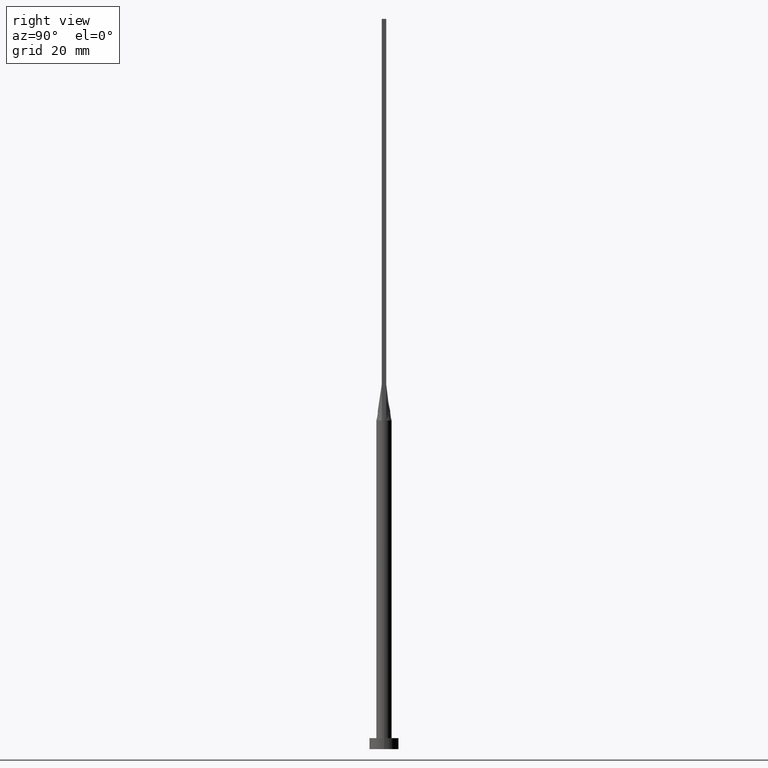
[diagram: clean part render]
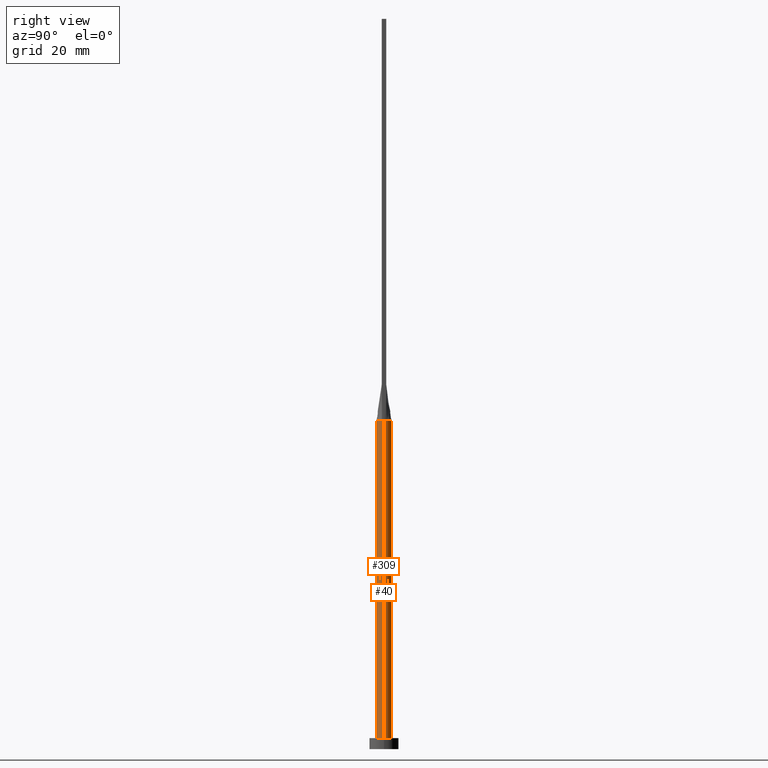
[diagram: same view with one multi-face feature highlighted, each face labeled with its STEP entity id]
A machine part, right view. The highlighted faces form ONE feature: a constant-radius fillet chain: 2 tangent blend faces with common blend radius 2.1 mm. The faces share edges in the B-rep.
Their STEP definitions:
[1] entity #40 (Cylinder):
#1 = EDGE_CURVE ( 'NONE', #502, #539, #475, .T. ) ;
#8 = EDGE_CURVE ( 'NONE', #372, #539, #489, .T. ) ;
#17 = CARTESIAN_POINT ( 'NONE',  ( -2.002622288503867587, 0.6324075186587619912, 90.00000000000000000 ) ) ;
#32 = CARTESIAN_POINT ( 'NONE',  ( 0.5124799074986362557, 2.051574327850739454, 90.00000000000004263 ) ) ;
#40 = ADVANCED_FACE ( 'NONE', ( #114 ), #161, .T. ) ;
#50 = VECTOR ( 'NONE', #262, 1000.000000000000000 ) ;
#52 = CARTESIAN_POINT ( 'NONE',  ( -2.100000000000000089, -1.284268198382905442E-16, 90.00000000000000000 ) ) ;
#65 = VERTEX_POINT ( 'NONE', #478 ) ;
#70 = CARTESIAN_POINT ( 'NONE',  ( -2.100000000000000089, 0.000000000000000000, 3.000000000000000000 ) ) ;
#71 = EDGE_CURVE ( 'NONE', #194, #502, #305, .T. ) ;
#86 = DIRECTION ( 'NONE',  ( -0.000000000000000000, -0.000000000000000000, -1.000000000000000000 ) ) ;
#93 = CARTESIAN_POINT ( 'NONE',  ( -1.667357759214464830, 1.291791096182927534, 90.00000000000001421 ) ) ;
#97 = CARTESIAN_POINT ( 'NONE',  ( 0.000000000000000000, 0.000000000000000000, 3.000000000000000000 ) ) ;
#103 = CARTESIAN_POINT ( 'NONE',  ( 2.002598039528881380, 0.6323997261616642884, 90.00000000000000000 ) ) ;
#113 = AXIS2_PLACEMENT_3D ( 'NONE', #293, #347, #117 ) ;
#114 = FACE_OUTER_BOUND ( 'NONE', #126, .T. ) ;
#117 = DIRECTION ( 'NONE',  ( -1.000000000000000000, 0.000000000000000000, 0.000000000000000000 ) ) ;
#126 = EDGE_LOOP ( 'NONE', ( #265, #157, #189, #451, #580, #556 ) ) ;
#148 = CARTESIAN_POINT ( 'NONE',  ( -1.878511276496549032, 0.9591670956957809580, 90.00000000000004263 ) ) ;
#157 = ORIENTED_EDGE ( 'NONE', *, *, #71, .T. ) ;
#160 = CARTESIAN_POINT ( 'NONE',  ( -1.529462611013499451, 1.456669187245239527, 90.00000000000002842 ) ) ;
#161 = CYLINDRICAL_SURFACE ( 'NONE', #113, 2.100000000000000089 ) ;
#165 = DIRECTION ( 'NONE',  ( 1.000000000000000000, 0.000000000000000000, 0.000000000000000000 ) ) ;
#184 = CIRCLE ( 'NONE', #326, 2.100000000000000089 ) ;
#186 = B_SPLINE_CURVE_WITH_KNOTS ( 'NONE', 3,
 ( #103, #378, #331, #552, #467, #240, #422, #32, #290, #248, #203, #246, #211, #160, #93, #148, #561, #471 ),
 .UNSPECIFIED., .F., .F.,
 ( 4, 2, 2, 2, 2, 2, 2, 2, 4 ),
 ( 0.000000000000000000, 0.1249999999999999167, 0.2499999999999998890, 0.3749999999999998335, 0.4999999999999998890, 0.6249999999999998890, 0.7499999999999998890, 0.8750000000000000000, 1.000000000000000000 ),
 .UNSPECIFIED. ) ;
#189 = ORIENTED_EDGE ( 'NONE', *, *, #1, .T. ) ;
#194 = VERTEX_POINT ( 'NONE', #532 ) ;
#203 = CARTESIAN_POINT ( 'NONE',  ( -0.5124799074986362557, 2.051574327850739454, 90.00000000000002842 ) ) ;
#211 = CARTESIAN_POINT ( 'NONE',  ( -1.184262492297963876, 1.748903470433446294, 90.00000000000002842 ) ) ;
#217 = EDGE_CURVE ( 'NONE', #65, #455, #186, .T. ) ;
#240 = CARTESIAN_POINT ( 'NONE',  ( 1.184262492297964098, 1.748903470433445628, 90.00000000000000000 ) ) ;
#246 = CARTESIAN_POINT ( 'NONE',  ( -0.9765948449220482885, 1.875594675604967509, 90.00000000000004263 ) ) ;
#248 = CARTESIAN_POINT ( 'NONE',  ( -0.2565105576742073845, 2.100000000000000533, 90.00000000000001421 ) ) ;
#258 = CARTESIAN_POINT ( 'NONE',  ( -2.100000000000000089, 0.000000000000000000, 90.00000000000000000 ) ) ;
#262 = DIRECTION ( 'NONE',  ( -0.000000000000000000, -0.000000000000000000, -1.000000000000000000 ) ) ;
#265 = ORIENTED_EDGE ( 'NONE', *, *, #547, .F. ) ;
#269 = CARTESIAN_POINT ( 'NONE',  ( 2.100000000000000089, 2.571758278209441957E-16, 90.00000000000000000 ) ) ;
#287 = AXIS2_PLACEMENT_3D ( 'NONE', #514, #564, #294 ) ;
#288 = DIRECTION ( 'NONE',  ( 1.000000000000000000, 0.000000000000000000, 0.000000000000000000 ) ) ;
#290 = CARTESIAN_POINT ( 'NONE',  ( 0.2565105576742081062, 2.100000000000000533, 90.00000000000000000 ) ) ;
#293 = CARTESIAN_POINT ( 'NONE',  ( 0.000000000000000000, 0.000000000000000000, 90.00000000000000000 ) ) ;
#294 = DIRECTION ( 'NONE',  ( 1.000000000000000000, 0.000000000000000000, 0.000000000000000000 ) ) ;
#305 = LINE ( 'NONE', #269, #50 ) ;
#321 = VECTOR ( 'NONE', #86, 1000.000000000000000 ) ;
#326 = AXIS2_PLACEMENT_3D ( 'NONE', #548, #508, #288 ) ;
#331 = CARTESIAN_POINT ( 'NONE',  ( 1.878511276496548366, 0.9591670956957804028, 90.00000000000000000 ) ) ;
#347 = DIRECTION ( 'NONE',  ( -0.000000000000000000, -0.000000000000000000, -1.000000000000000000 ) ) ;
#372 = VERTEX_POINT ( 'NONE', #52 ) ;
#378 = CARTESIAN_POINT ( 'NONE',  ( 1.952271707612931895, 0.7915068550356627597, 89.99999999999998579 ) ) ;
#414 = CIRCLE ( 'NONE', #287, 2.100000000000000089 ) ;
#422 = CARTESIAN_POINT ( 'NONE',  ( 0.9765948449220478444, 1.875594675604967065, 90.00000000000001421 ) ) ;
#424 = CARTESIAN_POINT ( 'NONE',  ( 2.100000000000000089, 2.571758278209441957E-16, 3.000000000000000000 ) ) ;
#451 = ORIENTED_EDGE ( 'NONE', *, *, #8, .F. ) ;
#455 = VERTEX_POINT ( 'NONE', #17 ) ;
#467 = CARTESIAN_POINT ( 'NONE',  ( 1.529462611013499451, 1.456669187245239527, 90.00000000000002842 ) ) ;
#471 = CARTESIAN_POINT ( 'NONE',  ( -2.002622288503867587, 0.6324075186587619912, 90.00000000000000000 ) ) ;
#475 = CIRCLE ( 'NONE', #554, 2.100000000000000089 ) ;
#478 = CARTESIAN_POINT ( 'NONE',  ( 2.002598039528881380, 0.6323997261616642884, 90.00000000000000000 ) ) ;
#489 = LINE ( 'NONE', #258, #321 ) ;
#500 = EDGE_CURVE ( 'NONE', #455, #372, #184, .T. ) ;
#502 = VERTEX_POINT ( 'NONE', #424 ) ;
#508 = DIRECTION ( 'NONE',  ( 0.000000000000000000, 0.000000000000000000, 1.000000000000000000 ) ) ;
#514 = CARTESIAN_POINT ( 'NONE',  ( 0.000000000000000000, 0.000000000000000000, 90.00000000000000000 ) ) ;
#532 = CARTESIAN_POINT ( 'NONE',  ( 2.100000000000000089, 3.372022381799045987E-17, 90.00000000000000000 ) ) ;
#533 = DIRECTION ( 'NONE',  ( 0.000000000000000000, 0.000000000000000000, 1.000000000000000000 ) ) ;
#539 = VERTEX_POINT ( 'NONE', #70 ) ;
#547 = EDGE_CURVE ( 'NONE', #194, #65, #414, .T. ) ;
#548 = CARTESIAN_POINT ( 'NONE',  ( 0.000000000000000000, 0.000000000000000000, 90.00000000000000000 ) ) ;
#552 = CARTESIAN_POINT ( 'NONE',  ( 1.667357759214464608, 1.291791096182927090, 90.00000000000000000 ) ) ;
#554 = AXIS2_PLACEMENT_3D ( 'NONE', #97, #533, #165 ) ;
#556 = ORIENTED_EDGE ( 'NONE', *, *, #217, .F. ) ;
#561 = CARTESIAN_POINT ( 'NONE',  ( -1.952271707612931895, 0.7915068550356629817, 90.00000000000001421 ) ) ;
#564 = DIRECTION ( 'NONE',  ( 0.000000000000000000, 0.000000000000000000, 1.000000000000000000 ) ) ;
#580 = ORIENTED_EDGE ( 'NONE', *, *, #500, .F. ) ;
[2] entity #309 (Cylinder):
#8 = EDGE_CURVE ( 'NONE', #372, #539, #489, .T. ) ;
#10 = EDGE_CURVE ( 'NONE', #37, #357, #68, .T. ) ;
#14 = CARTESIAN_POINT ( 'NONE',  ( 0.000000000000000000, 0.000000000000000000, 3.000000000000000000 ) ) ;
#33 = CARTESIAN_POINT ( 'NONE',  ( -2.002601997802567535, -0.6324010168594718095, 90.00000000000000000 ) ) ;
#35 = AXIS2_PLACEMENT_3D ( 'NONE', #14, #193, #154 ) ;
#37 = VERTEX_POINT ( 'NONE', #33 ) ;
#43 = DIRECTION ( 'NONE',  ( 0.000000000000000000, 0.000000000000000000, 1.000000000000000000 ) ) ;
#50 = VECTOR ( 'NONE', #262, 1000.000000000000000 ) ;
#52 = CARTESIAN_POINT ( 'NONE',  ( -2.100000000000000089, -1.284268198382905442E-16, 90.00000000000000000 ) ) ;
#54 = FACE_OUTER_BOUND ( 'NONE', #220, .T. ) ;
#68 = CIRCLE ( 'NONE', #412, 2.100000000000000089 ) ;
#70 = CARTESIAN_POINT ( 'NONE',  ( -2.100000000000000089, 0.000000000000000000, 3.000000000000000000 ) ) ;
#71 = EDGE_CURVE ( 'NONE', #194, #502, #305, .T. ) ;
#86 = DIRECTION ( 'NONE',  ( -0.000000000000000000, -0.000000000000000000, -1.000000000000000000 ) ) ;
#99 = DIRECTION ( 'NONE',  ( -1.000000000000000000, 0.000000000000000000, 0.000000000000000000 ) ) ;
#119 = DIRECTION ( 'NONE',  ( 1.000000000000000000, -1.776356839400250465E-15, 0.000000000000000000 ) ) ;
#123 = CARTESIAN_POINT ( 'NONE',  ( 0.000000000000000000, 0.000000000000000000, 90.00000000000000000 ) ) ;
#144 = CARTESIAN_POINT ( 'NONE',  ( 0.000000000000000000, 0.000000000000000000, 90.00000000000000000 ) ) ;
#150 = DIRECTION ( 'NONE',  ( 0.000000000000000000, 0.000000000000000000, 1.000000000000000000 ) ) ;
#152 = ORIENTED_EDGE ( 'NONE', *, *, #458, .F. ) ;
#154 = DIRECTION ( 'NONE',  ( 1.000000000000000000, 0.000000000000000000, 0.000000000000000000 ) ) ;
#163 = ORIENTED_EDGE ( 'NONE', *, *, #71, .F. ) ;
#193 = DIRECTION ( 'NONE',  ( 0.000000000000000000, 0.000000000000000000, 1.000000000000000000 ) ) ;
#194 = VERTEX_POINT ( 'NONE', #532 ) ;
#206 = ORIENTED_EDGE ( 'NONE', *, *, #8, .T. ) ;
#220 = EDGE_LOOP ( 'NONE', ( #163, #152, #400, #530, #206, #517 ) ) ;
#224 = EDGE_CURVE ( 'NONE', #539, #502, #358, .T. ) ;
#234 = AXIS2_PLACEMENT_3D ( 'NONE', #551, #150, #119 ) ;
#258 = CARTESIAN_POINT ( 'NONE',  ( -2.100000000000000089, 0.000000000000000000, 90.00000000000000000 ) ) ;
#260 = CARTESIAN_POINT ( 'NONE',  ( 0.000000000000000000, 0.000000000000000000, 90.00000000000000000 ) ) ;
#262 = DIRECTION ( 'NONE',  ( -0.000000000000000000, -0.000000000000000000, -1.000000000000000000 ) ) ;
#263 = AXIS2_PLACEMENT_3D ( 'NONE', #123, #43, #447 ) ;
#269 = CARTESIAN_POINT ( 'NONE',  ( 2.100000000000000089, 2.571758278209441957E-16, 90.00000000000000000 ) ) ;
#305 = LINE ( 'NONE', #269, #50 ) ;
#309 = ADVANCED_FACE ( 'NONE', ( #54 ), #319, .T. ) ;
#319 = CYLINDRICAL_SURFACE ( 'NONE', #419, 2.100000000000000089 ) ;
#321 = VECTOR ( 'NONE', #86, 1000.000000000000000 ) ;
#357 = VERTEX_POINT ( 'NONE', #571 ) ;
#358 = CIRCLE ( 'NONE', #35, 2.100000000000000089 ) ;
#369 = DIRECTION ( 'NONE',  ( 0.000000000000000000, 0.000000000000000000, 1.000000000000000000 ) ) ;
#372 = VERTEX_POINT ( 'NONE', #52 ) ;
#400 = ORIENTED_EDGE ( 'NONE', *, *, #10, .F. ) ;
#411 = EDGE_CURVE ( 'NONE', #372, #37, #531, .T. ) ;
#412 = AXIS2_PLACEMENT_3D ( 'NONE', #260, #369, #578 ) ;
#419 = AXIS2_PLACEMENT_3D ( 'NONE', #144, #504, #99 ) ;
#424 = CARTESIAN_POINT ( 'NONE',  ( 2.100000000000000089, 2.571758278209441957E-16, 3.000000000000000000 ) ) ;
#447 = DIRECTION ( 'NONE',  ( 1.000000000000000000, 0.000000000000000000, 0.000000000000000000 ) ) ;
#458 = EDGE_CURVE ( 'NONE', #357, #194, #486, .T. ) ;
#486 = CIRCLE ( 'NONE', #234, 2.100000000000000089 ) ;
#489 = LINE ( 'NONE', #258, #321 ) ;
#502 = VERTEX_POINT ( 'NONE', #424 ) ;
#504 = DIRECTION ( 'NONE',  ( -0.000000000000000000, -0.000000000000000000, -1.000000000000000000 ) ) ;
#517 = ORIENTED_EDGE ( 'NONE', *, *, #224, .T. ) ;
#530 = ORIENTED_EDGE ( 'NONE', *, *, #411, .F. ) ;
#531 = CIRCLE ( 'NONE', #263, 2.100000000000000089 ) ;
#532 = CARTESIAN_POINT ( 'NONE',  ( 2.100000000000000089, 3.372022381799045987E-17, 90.00000000000000000 ) ) ;
#539 = VERTEX_POINT ( 'NONE', #70 ) ;
#551 = CARTESIAN_POINT ( 'NONE',  ( 0.000000000000000000, 0.000000000000000000, 90.00000000000000000 ) ) ;
#571 = CARTESIAN_POINT ( 'NONE',  ( 2.002626276893244128, -0.6324088233005202841, 90.00000000000000000 ) ) ;
#578 = DIRECTION ( 'NONE',  ( 1.000000000000000000, 0.000000000000000000, 0.000000000000000000 ) ) ;